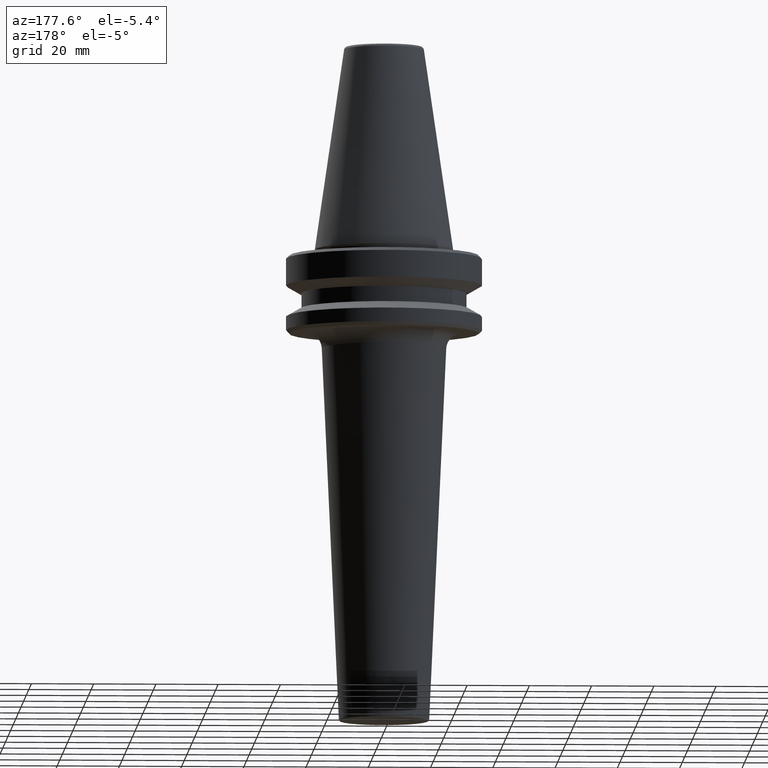
[diagram: clean part render]
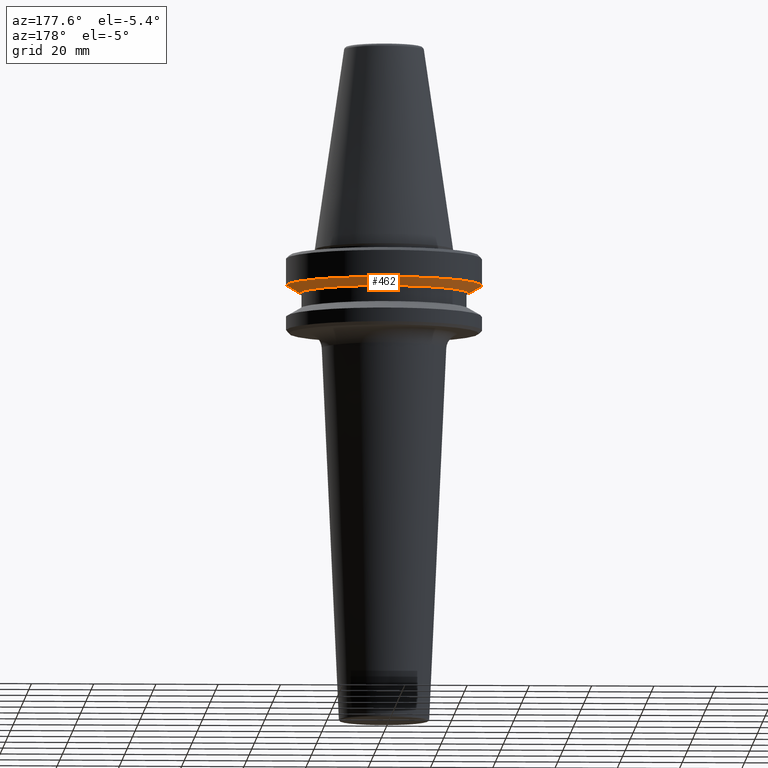
[diagram: same view with one face highlighted and labeled with its STEP entity id]
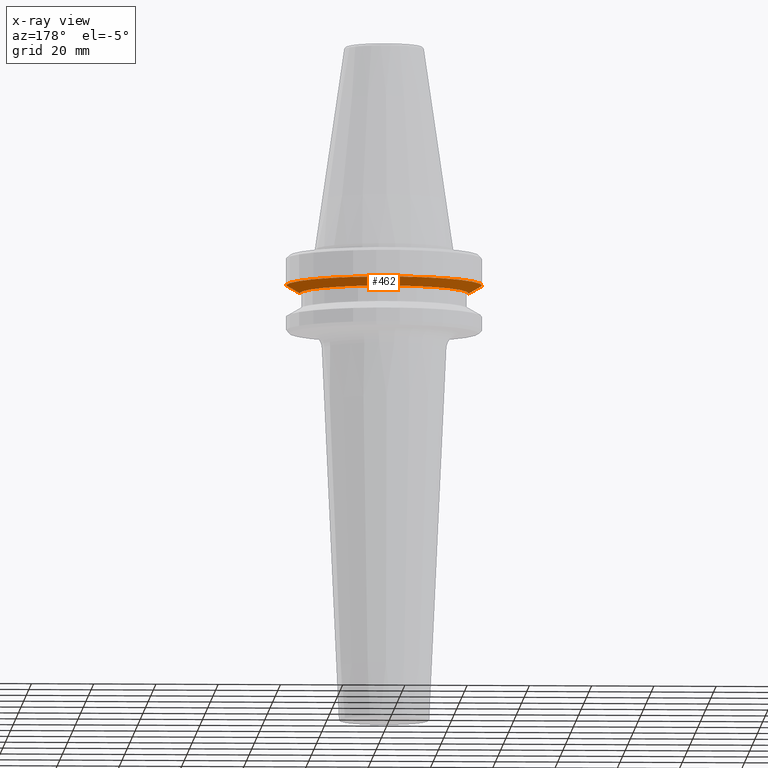
[diagram: x-ray of the same camera — body ghosted, the highlighted face saturated]
A machine part, auxiliary view. The second image highlights one B-rep face of the part: STEP entity #462.
The next image is the same camera in x-ray: the body ghosted, the highlighted face saturated — about 0% of this face is hidden behind the body in this view.
In plain terms, the highlighted conical surface has half-angle 60 deg.
Its self-contained STEP definition (entity closure, byte-faithful):
#22 = DIRECTION ( 'NONE',  ( 1.000000000000000000, 0.0000000000000000000, 0.0000000000000000000 ) ) ;
#27 = FACE_OUTER_BOUND ( 'NONE', #797, .T. ) ;
#82 = VERTEX_POINT ( 'NONE', #465 ) ;
#98 = EDGE_CURVE ( 'NONE', #1023, #500, #545, .T. ) ;
#209 = EDGE_CURVE ( 'NONE', #1023, #82, #842, .T. ) ;
#250 = CIRCLE ( 'NONE', #886, 31.50000000000008500 ) ;
#314 = AXIS2_PLACEMENT_3D ( 'NONE', #958, #804, #486 ) ;
#351 = ORIENTED_EDGE ( 'NONE', *, *, #1003, .T. ) ;
#352 = DIRECTION ( 'NONE',  ( -0.8660254037844383700, 1.060575238724906500E-016, 0.5000000000000003300 ) ) ;
#462 = ADVANCED_FACE ( 'NONE', ( #27 ), #616, .T. ) ;
#465 = CARTESIAN_POINT ( 'NONE',  ( 31.50000000000008500, 0.0000000000000000000, -76.99985799368391800 ) ) ;
#486 = DIRECTION ( 'NONE',  ( 1.000000000000000000, 0.0000000000000000000, 0.0000000000000000000 ) ) ;
#500 = VERTEX_POINT ( 'NONE', #811 ) ;
#501 = DIRECTION ( 'NONE',  ( -0.0000000000000000000, -0.0000000000000000000, 1.000000000000000000 ) ) ;
#510 = CARTESIAN_POINT ( 'NONE',  ( -31.50000000000008500, 3.857637417314172900E-015, -76.99985799368391800 ) ) ;
#513 = VECTOR ( 'NONE', #352, 1000.000000000000100 ) ;
#522 = DIRECTION ( 'NONE',  ( -0.0000000000000000000, -0.0000000000000000000, 1.000000000000000000 ) ) ;
#532 = ORIENTED_EDGE ( 'NONE', *, *, #812, .F. ) ;
#545 = CIRCLE ( 'NONE', #859, 27.16962701892322600 ) ;
#550 = CARTESIAN_POINT ( 'NONE',  ( 31.50000000000008500, 0.0000000000000000000, -76.99985799368391800 ) ) ;
#616 = CONICAL_SURFACE ( 'NONE', #314, 31.50000000000008500, 1.047197551196597400 ) ;
#656 = ORIENTED_EDGE ( 'NONE', *, *, #98, .T. ) ;
#675 = CARTESIAN_POINT ( 'NONE',  ( -31.50000000000008500, 3.857637417314172900E-015, -76.99985799368391800 ) ) ;
#733 = LINE ( 'NONE', #510, #513 ) ;
#743 = ORIENTED_EDGE ( 'NONE', *, *, #209, .F. ) ;
#797 = EDGE_LOOP ( 'NONE', ( #656, #351, #532, #743 ) ) ;
#804 = DIRECTION ( 'NONE',  ( -0.0000000000000000000, -0.0000000000000000000, 1.000000000000000000 ) ) ;
#811 = CARTESIAN_POINT ( 'NONE',  ( -27.16962701892322600, 3.592478546794674900E-015, -79.50000000000012800 ) ) ;
#812 = EDGE_CURVE ( 'NONE', #82, #891, #250, .T. ) ;
#835 = CARTESIAN_POINT ( 'NONE',  ( 27.16962701892322600, 0.0000000000000000000, -79.50000000000012800 ) ) ;
#842 = LINE ( 'NONE', #550, #1045 ) ;
#859 = AXIS2_PLACEMENT_3D ( 'NONE', #1002, #522, #22 ) ;
#886 = AXIS2_PLACEMENT_3D ( 'NONE', #977, #501, #1055 ) ;
#891 = VERTEX_POINT ( 'NONE', #675 ) ;
#958 = CARTESIAN_POINT ( 'NONE',  ( 0.0000000000000000000, 0.0000000000000000000, -76.99985799368391800 ) ) ;
#977 = CARTESIAN_POINT ( 'NONE',  ( 0.0000000000000000000, 0.0000000000000000000, -76.99985799368391800 ) ) ;
#1002 = CARTESIAN_POINT ( 'NONE',  ( 0.0000000000000000000, 0.0000000000000000000, -79.50000000000012800 ) ) ;
#1003 = EDGE_CURVE ( 'NONE', #500, #891, #733, .T. ) ;
#1023 = VERTEX_POINT ( 'NONE', #835 ) ;
#1026 = DIRECTION ( 'NONE',  ( 0.8660254037844383700, 0.0000000000000000000, 0.5000000000000003300 ) ) ;
#1045 = VECTOR ( 'NONE', #1026, 1000.000000000000100 ) ;
#1055 = DIRECTION ( 'NONE',  ( 1.000000000000000000, 0.0000000000000000000, 0.0000000000000000000 ) ) ;